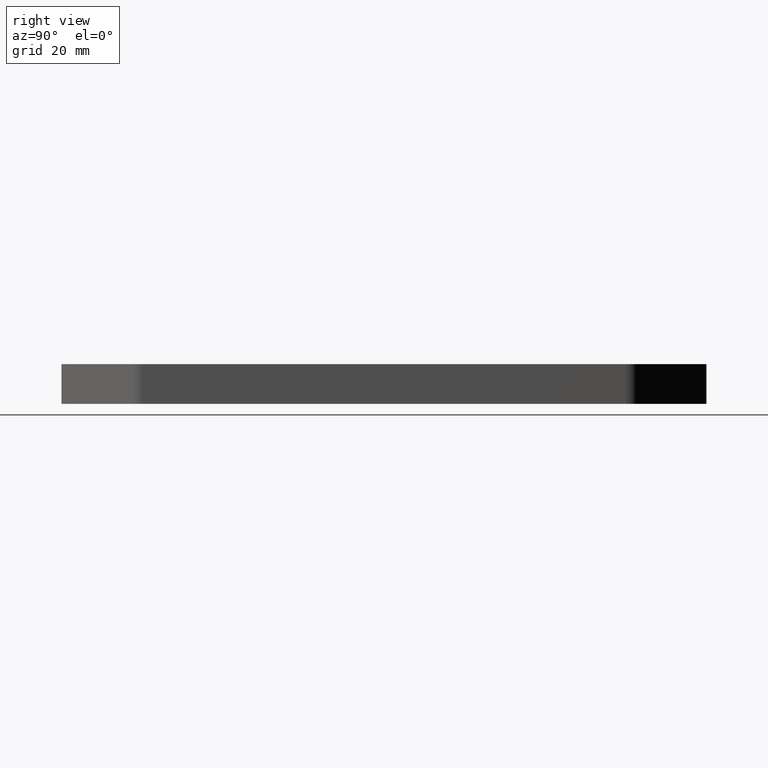
[diagram: clean part render]
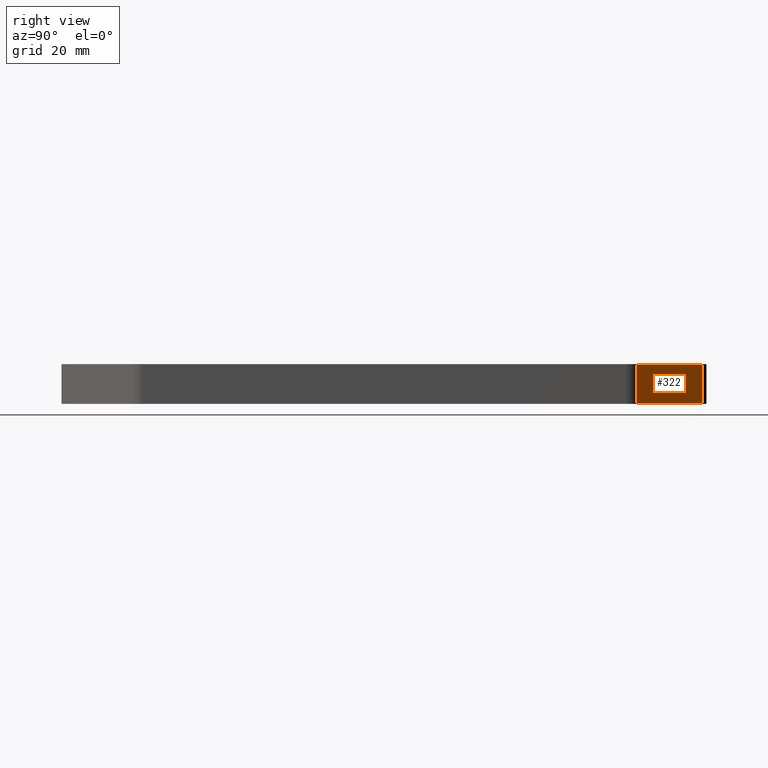
[diagram: same view with one face highlighted and labeled with its STEP entity id]
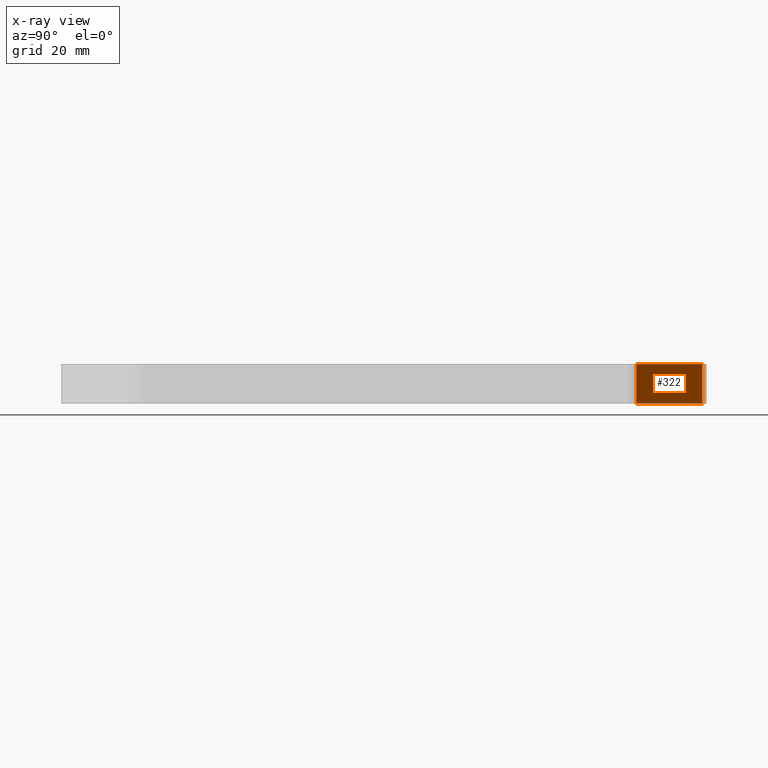
[diagram: x-ray of the same camera — body ghosted, the highlighted face saturated]
A machine part, right view. The second image highlights one B-rep face of the part: STEP entity #322.
The next image is the same camera in x-ray: the body ghosted, the highlighted face saturated — about 0% of this face is hidden behind the body in this view.
In plain terms, the highlighted planar face has unit normal (-0.7071, -0.7071, 0).
Its self-contained STEP definition (entity closure, byte-faithful):
#5 = DIRECTION ( 'NONE',  ( -0.7071067811865489050, 0.7071067811865462405, -0.000000000000000000 ) ) ;
#11 = CARTESIAN_POINT ( 'NONE',  ( 33.62132034355963839, 50.87867965644032608, 0.000000000000000000 ) ) ;
#32 = EDGE_LOOP ( 'NONE', ( #160, #241, #224, #126 ) ) ;
#35 = VECTOR ( 'NONE', #5, 1000.000000000000000 ) ;
#58 = DIRECTION ( 'NONE',  ( -0.7071067811865462405, -0.7071067811865489050, 0.000000000000000000 ) ) ;
#61 = EDGE_CURVE ( 'NONE', #220, #206, #259, .T. ) ;
#119 = VERTEX_POINT ( 'NONE', #11 ) ;
#123 = FACE_OUTER_BOUND ( 'NONE', #32, .T. ) ;
#126 = ORIENTED_EDGE ( 'NONE', *, *, #372, .T. ) ;
#129 = AXIS2_PLACEMENT_3D ( 'NONE', #195, #58, #161 ) ;
#136 = CARTESIAN_POINT ( 'NONE',  ( 33.62132034355963839, 50.87867965644032608, -8.000000000000000000 ) ) ;
#154 = PLANE ( 'NONE',  #129 ) ;
#160 = ORIENTED_EDGE ( 'NONE', *, *, #61, .F. ) ;
#161 = DIRECTION ( 'NONE',  ( 0.000000000000000000, 0.000000000000000000, 1.000000000000000000 ) ) ;
#182 = DIRECTION ( 'NONE',  ( 0.7071067811865489050, -0.7071067811865462405, -0.000000000000000000 ) ) ;
#195 = CARTESIAN_POINT ( 'NONE',  ( 34.49999999999999289, 49.99999999999997158, -8.000000000000000000 ) ) ;
#206 = VERTEX_POINT ( 'NONE', #136 ) ;
#220 = VERTEX_POINT ( 'NONE', #436 ) ;
#224 = ORIENTED_EDGE ( 'NONE', *, *, #292, .F. ) ;
#240 = CARTESIAN_POINT ( 'NONE',  ( 34.49999999999999289, 49.99999999999997158, 0.000000000000000000 ) ) ;
#241 = ORIENTED_EDGE ( 'NONE', *, *, #295, .T. ) ;
#259 = LINE ( 'NONE', #417, #440 ) ;
#272 = CARTESIAN_POINT ( 'NONE',  ( 33.62132034355963839, 50.87867965644032608, -8.000000000000000000 ) ) ;
#276 = LINE ( 'NONE', #240, #35 ) ;
#289 = CARTESIAN_POINT ( 'NONE',  ( 20.37867965644027990, 64.12132034355963128, 0.000000000000000000 ) ) ;
#292 = EDGE_CURVE ( 'NONE', #119, #297, #276, .T. ) ;
#295 = EDGE_CURVE ( 'NONE', #220, #297, #412, .T. ) ;
#297 = VERTEX_POINT ( 'NONE', #289 ) ;
#310 = CARTESIAN_POINT ( 'NONE',  ( 20.37867965644028700, 64.12132034355963128, -8.000000000000000000 ) ) ;
#317 = VECTOR ( 'NONE', #360, 1000.000000000000000 ) ;
#322 = ADVANCED_FACE ( 'NONE', ( #123 ), #154, .F. ) ;
#357 = VECTOR ( 'NONE', #374, 1000.000000000000000 ) ;
#360 = DIRECTION ( 'NONE',  ( -0.000000000000000000, -0.000000000000000000, 1.000000000000000000 ) ) ;
#372 = EDGE_CURVE ( 'NONE', #119, #206, #431, .T. ) ;
#374 = DIRECTION ( 'NONE',  ( -0.000000000000000000, -0.000000000000000000, -1.000000000000000000 ) ) ;
#412 = LINE ( 'NONE', #310, #317 ) ;
#417 = CARTESIAN_POINT ( 'NONE',  ( 42.24999999999992184, 42.25000000000007816, -8.000000000000000000 ) ) ;
#431 = LINE ( 'NONE', #272, #357 ) ;
#436 = CARTESIAN_POINT ( 'NONE',  ( 20.37867965644027990, 64.12132034355963128, -8.000000000000000000 ) ) ;
#440 = VECTOR ( 'NONE', #182, 1000.000000000000000 ) ;